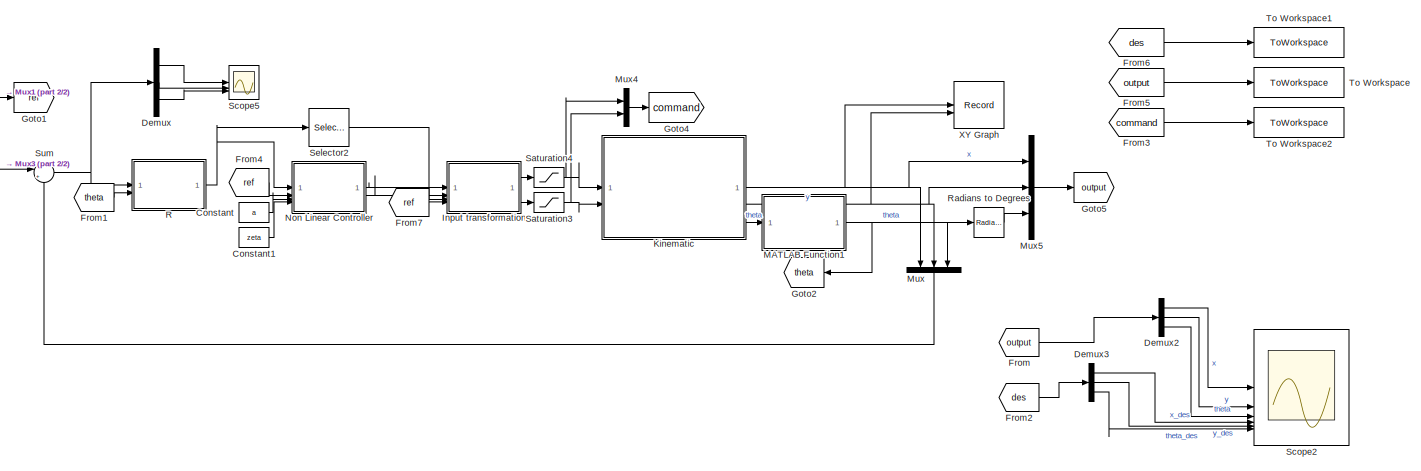
[diagram: root canvas - part 1/2, center side, full height]
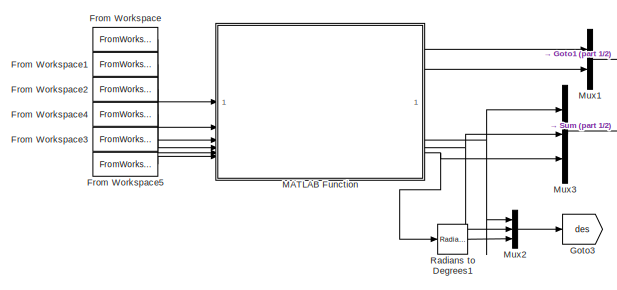
[diagram: root canvas - part 2/2, middle left region]
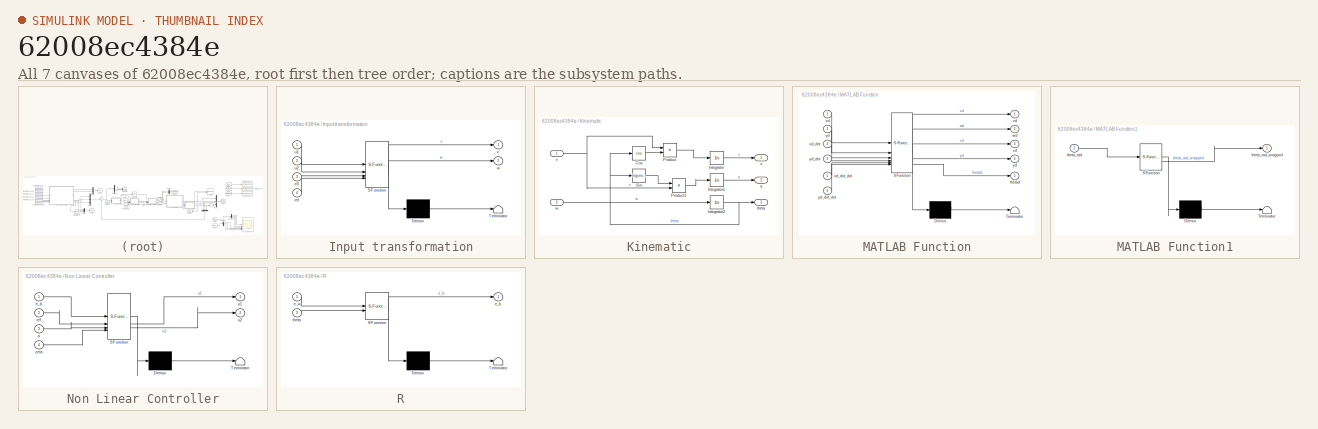
[diagram: thumbnail index - all 7 canvases of the model, root first then tree order]
MODEL slx_62008ec4384e
KIND model
CONFIG AbsTol = auto
CONFIG EnableMultiTasking = off
CONFIG FixedStep = step_size
CONFIG MaxStep = auto
CONFIG MinStep = auto
CONFIG RelTol = 1e-3
CONFIG SampleTimeConstraint = Unconstrained
CONFIG SolverName = FixedStepAuto
CONFIG StartTime = 0.0
CONFIG StopTime = 10.0
BLOCK [Constant] Constant
  Value = a
BLOCK [Constant] Constant1
  Value = zeta
BLOCK [Demux] Demux
  Outputs = 3
BLOCK [Demux] Demux2
  Outputs = 3
BLOCK [Demux] Demux3
  Outputs = 3
BLOCK [From] From
  GotoTag = output
BLOCK [FromWorkspace] From Workspace
  VariableName = x_sim
BLOCK [FromWorkspace] From Workspace1
  VariableName = y_sim
BLOCK [FromWorkspace] From Workspace2
  VariableName = x_dot_sim
BLOCK [FromWorkspace] From Workspace3
  VariableName = x_dot_dot_sim
BLOCK [FromWorkspace] From Workspace4
  VariableName = y_dot_sim
BLOCK [FromWorkspace] From Workspace5
  VariableName = y_dot_dot_sim
BLOCK [From] From1
  GotoTag = theta
BLOCK [From] From2
  GotoTag = des
BLOCK [From] From3
  GotoTag = command
BLOCK [From] From4
  GotoTag = ref
BLOCK [From] From5
  GotoTag = output
BLOCK [From] From6
  GotoTag = des
BLOCK [From] From7
  GotoTag = ref
BLOCK [Goto] Goto1
  GotoTag = ref
BLOCK [Goto] Goto2
  GotoTag = theta
BLOCK [Goto] Goto3
  GotoTag = des
BLOCK [Goto] Goto4
  GotoTag = command
BLOCK [Goto] Goto5
  GotoTag = output
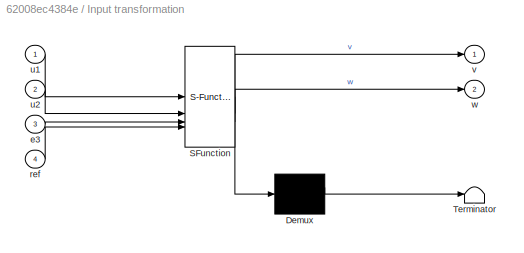
BLOCK [SubSystem] Input transformation
  ErrorFcn = Stateflow.Translate.translate
  LibrarySourceBlock = simulink/User-Defined\nFunctions/MATLAB Function
  PermitHierarchicalResolution = ExplicitOnly
  SFBlockType = MATLAB Function
  TreatAsAtomicUnit = on
BLOCK [Demux] Input transformation/ Demux 
  Outputs = 1
BLOCK [S-Function] Input transformation/ SFunction 
  EnableBusSupport = on
  FunctionName = sf_sfun
  PortCounts = [4 3]
  SFcnIsStateOwnerBlock = off
  SFunctionDeploymentMode = off
  Tag = Stateflow S-Function 4
BLOCK [Terminator] Input transformation/ Terminator 
BLOCK [Inport] Input transformation/e3
  Port = 3
BLOCK [Inport] Input transformation/ref
  Port = 4
BLOCK [Inport] Input transformation/u1
BLOCK [Inport] Input transformation/u2
  Port = 2
BLOCK [Outport] Input transformation/v
BLOCK [Outport] Input transformation/w
  Port = 2
BLOCK [SubSystem] Kinematic
BLOCK [Trigonometry] Kinematic/Cos
  Operator = cos
BLOCK [Integrator] Kinematic/Integrator
  InitialCondition = x_i
BLOCK [Integrator] Kinematic/Integrator1
  InitialCondition = y_i
BLOCK [Integrator] Kinematic/Integrator2
  InitialCondition = theta_i
BLOCK [Product] Kinematic/Product
BLOCK [Product] Kinematic/Product1
BLOCK [Trigonometry] Kinematic/Sin
BLOCK [Outport] Kinematic/theta
  Port = 3
BLOCK [Inport] Kinematic/v
BLOCK [Inport] Kinematic/w
  Port = 2
BLOCK [Outport] Kinematic/x
BLOCK [Outport] Kinematic/y
  Port = 2
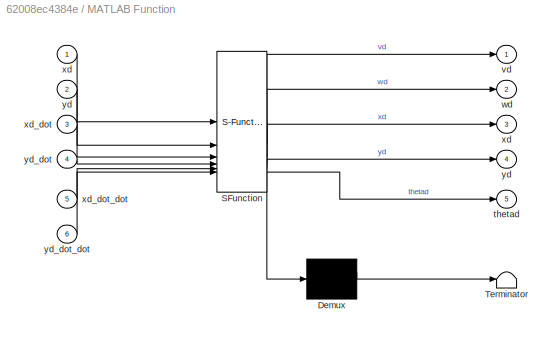
BLOCK [SubSystem] MATLAB Function
  ErrorFcn = Stateflow.Translate.translate
  LibrarySourceBlock = simulink/User-Defined\nFunctions/MATLAB Function
  PermitHierarchicalResolution = ExplicitOnly
  SFBlockType = MATLAB Function
  TreatAsAtomicUnit = on
BLOCK [Demux] MATLAB Function/ Demux 
  Outputs = 1
BLOCK [S-Function] MATLAB Function/ SFunction 
  EnableBusSupport = on
  FunctionName = sf_sfun
  PortCounts = [6 6]
  SFcnIsStateOwnerBlock = off
  SFunctionDeploymentMode = off
  Tag = Stateflow S-Function 2
BLOCK [Terminator] MATLAB Function/ Terminator 
BLOCK [Outport] MATLAB Function/thetad
  Port = 5
BLOCK [Outport] MATLAB Function/vd
BLOCK [Outport] MATLAB Function/wd
  Port = 2
BLOCK [Outport] MATLAB Function/xd
  Port = 3
BLOCK [Inport] MATLAB Function/xd 
BLOCK [Inport] MATLAB Function/xd_dot
  Port = 3
BLOCK [Inport] MATLAB Function/xd_dot_dot
  Port = 5
BLOCK [Outport] MATLAB Function/yd
  Port = 4
BLOCK [Inport] MATLAB Function/yd 
  Port = 2
BLOCK [Inport] MATLAB Function/yd_dot
  Port = 4
BLOCK [Inport] MATLAB Function/yd_dot_dot
  Port = 6
BLOCK [SubSystem] MATLAB Function1
  ErrorFcn = Stateflow.Translate.translate
  LibrarySourceBlock = simulink/User-Defined\nFunctions/MATLAB Function
  PermitHierarchicalResolution = ExplicitOnly
  SFBlockType = MATLAB Function
  TreatAsAtomicUnit = on
BLOCK [Demux] MATLAB Function1/ Demux 
  Outputs = 1
BLOCK [S-Function] MATLAB Function1/ SFunction 
  EnableBusSupport = on
  FunctionName = sf_sfun
  PortCounts = [1 2]
  SFcnIsStateOwnerBlock = off
  SFunctionDeploymentMode = off
  Tag = Stateflow S-Function 5
BLOCK [Terminator] MATLAB Function1/ Terminator 
BLOCK [Inport] MATLAB Function1/theta_rad
BLOCK [Outport] MATLAB Function1/theta_rad_wrapped
BLOCK [Mux] Mux
  DisplayOption = bar
  Inputs = 3
  NameLocation = left
BLOCK [Mux] Mux1
  DisplayOption = bar
  Inputs = 2
BLOCK [Mux] Mux2
  DisplayOption = bar
  Inputs = 3
BLOCK [Mux] Mux3
  DisplayOption = bar
  Inputs = 3
BLOCK [Mux] Mux4
  DisplayOption = bar
  Inputs = 2
BLOCK [Mux] Mux5
  DisplayOption = bar
  Inputs = 3
BLOCK [SubSystem] Non Linear Controller
  ErrorFcn = Stateflow.Translate.translate
  LibrarySourceBlock = simulink/User-Defined\nFunctions/MATLAB Function
  PermitHierarchicalResolution = ExplicitOnly
  SFBlockType = MATLAB Function
  TreatAsAtomicUnit = on
BLOCK [Demux] Non Linear Controller/ Demux 
  Outputs = 1
BLOCK [S-Function] Non Linear Controller/ SFunction 
  EnableBusSupport = on
  FunctionName = sf_sfun
  PortCounts = [4 3]
  SFcnIsStateOwnerBlock = off
  SFunctionDeploymentMode = off
  Tag = Stateflow S-Function 3
BLOCK [Terminator] Non Linear Controller/ Terminator 
BLOCK [Inport] Non Linear Controller/a
  Port = 3
BLOCK [Inport] Non Linear Controller/e_b
BLOCK [Inport] Non Linear Controller/ref
  Port = 2
BLOCK [Outport] Non Linear Controller/u1
BLOCK [Outport] Non Linear Controller/u2
  Port = 2
BLOCK [Inport] Non Linear Controller/zeta
  Port = 4
BLOCK [SubSystem] R
  ErrorFcn = Stateflow.Translate.translate
  LibrarySourceBlock = simulink/User-Defined\nFunctions/MATLAB Function
  PermitHierarchicalResolution = ExplicitOnly
  SFBlockType = MATLAB Function
  TreatAsAtomicUnit = on
BLOCK [Demux] R/ Demux 
  Outputs = 1
BLOCK [S-Function] R/ SFunction 
  EnableBusSupport = on
  FunctionName = sf_sfun
  PortCounts = [2 2]
  SFcnIsStateOwnerBlock = off
  SFunctionDeploymentMode = off
  Tag = Stateflow S-Function 6
BLOCK [Terminator] R/ Terminator 
BLOCK [Outport] R/e_b
BLOCK [Inport] R/e_w
BLOCK [Inport] R/theta
  Port = 2
BLOCK [Reference] Radians to Degrees  REF=simulink_extras/Transformations/Radians
to Degrees
  SourceBlock = simulink_extras/Transformations/Radians\nto Degrees
  SourceType = RadiansToDegrees
BLOCK [Reference] Radians to Degrees1  REF=simulink_extras/Transformations/Radians
to Degrees
  SourceBlock = simulink_extras/Transformations/Radians\nto Degrees
  SourceType = RadiansToDegrees
BLOCK [Saturate] Saturation3
  LowerLimit = -2
  UpperLimit = 2
BLOCK [Saturate] Saturation4
  LowerLimit = -2
  UpperLimit = 2
BLOCK [Scope] Scope2
  Floating = off
  NumInputPorts = 6
  ScopeSpecificationString = Simulink.scopes.TimeScopeBlockCfg('CurrentConfiguration', extmgr.ConfigurationSet(extmgr.Configuration('Core','General UI',true),extmgr.Configuration('Core','Source UI',true),extmgr.Configuration('Sources','WiredSimulink',true,'DataLoggingVariableName','ScopeData1'),extmgr.Configuration('Visuals','Time Domain',true,'SerializedDisplays',{struct('MinYLimReal','-8.55065','MaxYLimReal','-2.97947','YLa...<+4835ch>
BLOCK [Scope] Scope5
  Floating = off
  NumInputPorts = 3
  ScopeSpecificationString = Simulink.scopes.TimeScopeBlockCfg('CurrentConfiguration', extmgr.ConfigurationSet(extmgr.Configuration('Core','General UI',true),extmgr.Configuration('Core','Source UI',true),extmgr.Configuration('Sources','WiredSimulink',true),extmgr.Configuration('Visuals','Time Domain',true,'SerializedDisplays',{struct('MinYLimReal','-6.28624','MaxYLimReal','6.43918','YLabelReal','','MinYLimMag','0.00000','MaxY...<+1428ch>
BLOCK [Selector] Selector2
  IndexOptions = Index vector (dialog)
  Indices = 3
  InputPortWidth = 3
  OutputSizes = 1
BLOCK [Sum] Sum
  Inputs = |+-
BLOCK [ToWorkspace] To Workspace
  FixptAsFi = on
  MaxDataPoints = inf
  SampleTime = -1
  SaveFormat = Structure With Time
  VariableName = output
BLOCK [ToWorkspace] To Workspace1
  FixptAsFi = on
  MaxDataPoints = inf
  SampleTime = -1
  SaveFormat = Structure With Time
  VariableName = reference
BLOCK [ToWorkspace] To Workspace2
  FixptAsFi = on
  MaxDataPoints = inf
  SampleTime = -1
  SaveFormat = Structure With Time
  VariableName = command
BLOCK [Record] XY Graph
  CompatibilityTag = XY
  FileSettingsInternal = {"entries":[{"content":{"excelSettings":{"content":{},"type":"Streamout.ExcelSettings"}},"type":"Streamout.FileSettingStorage","uuid":"682d1c13-c88e-46c2-b5c0-111468394261"}],"packageUris":["http://schema.mathworks.com/mf0/streamout_blocks/R2020a"],"version":"1.0"}
  Layout = [1 1]
  SignalsInternal = {"entries":[{"content":{"signals":[{"content":{"blockPath":["State_Feedback_NON_Linear/XY Graph"],"channel":[],"dimensions":[1],"domain":"State_Feedback_NON_Linear/XY Graph","lineColor":"#edb120","plots":[],"port":1,"sid":[],"signalID":100,"signalName":"x"},"type":"RecordBlkView.Signal","uuid":"26481353-9f29-4732-90e1-2d5a6569a59e"},{"content":{"blockPath":["State_Feedback_NON_Linear/XY Graph"],"c...<+411ch>
  VisualizationBindings = {"xyplotplugin":{"info":[{"series":[],"subplotID":1}]}}
LINE Constant1:1 -> Non Linear Controller:4
LINE Constant:1 -> Non Linear Controller:3
LINE Demux2:1 -> Scope2:1
LINE Demux2:2 -> Scope2:2
LINE Demux2:3 -> Scope2:3
LINE Demux3:1 -> Scope2:4
LINE Demux3:2 -> Scope2:5
LINE Demux3:3 -> Scope2:6
LINE Demux:1 -> Scope5:1
LINE Demux:2 -> Scope5:2
LINE Demux:3 -> Scope5:3
LINE From Workspace1:1 -> MATLAB Function:2
LINE From Workspace2:1 -> MATLAB Function:3
LINE From Workspace3:1 -> MATLAB Function:5
LINE From Workspace4:1 -> MATLAB Function:4
LINE From Workspace5:1 -> MATLAB Function:6
LINE From Workspace:1 -> MATLAB Function:1
LINE From1:1 -> R:2
LINE From2:1 -> Demux3:1
LINE From3:1 -> To Workspace2:1
LINE From4:1 -> Non Linear Controller:2
LINE From5:1 -> To Workspace:1
LINE From6:1 -> To Workspace1:1
LINE From7:1 -> Input transformation:4
LINE From:1 -> Demux2:1
LINE Input transformation:1 -> Saturation4:1
LINE Input transformation:2 -> Saturation3:1
LINE Kinematic/Cos:1 -> Kinematic/Product:2
LINE Kinematic/Integrator1:1 -> Kinematic/y:1
NET Kinematic/Integrator2:1 -> Kinematic/Cos:1, Kinematic/Sin:1, Kinematic/theta:1
LINE Kinematic/Integrator:1 -> Kinematic/x:1
LINE Kinematic/Product1:1 -> Kinematic/Integrator1:1
LINE Kinematic/Product:1 -> Kinematic/Integrator:1
LINE Kinematic/Sin:1 -> Kinematic/Product1:1
NET Kinematic/v:1 -> Kinematic/Product1:2, Kinematic/Product:1
LINE Kinematic/w:1 -> Kinematic/Integrator2:1
NET Kinematic:1 -> Mux5:1, Mux:1, XY Graph:1
NET Kinematic:2 -> Mux5:2, Mux:2, XY Graph:2
LINE Kinematic:3 -> MATLAB Function1:1
NET MATLAB Function1:1 -> Goto2:1, Mux:3, Radians to Degrees:1
LINE MATLAB Function:1 -> Mux1:1
LINE MATLAB Function:2 -> Mux1:2
NET MATLAB Function:3 -> Mux2:1, Mux3:1
NET MATLAB Function:4 -> Mux2:2, Mux3:2
NET MATLAB Function:5 -> Mux3:3, Radians to Degrees1:1
LINE Mux1:1 -> Goto1:1
LINE Mux2:1 -> Goto3:1
LINE Mux3:1 -> Sum:1
LINE Mux4:1 -> Goto4:1
LINE Mux5:1 -> Goto5:1
LINE Mux:1 -> Sum:2
LINE Non Linear Controller:1 -> Input transformation:1
LINE Non Linear Controller:2 -> Input transformation:2
NET R:1 -> Non Linear Controller:1, Selector2:1
LINE Radians to Degrees1:1 -> Mux2:3
LINE Radians to Degrees:1 -> Mux5:3
NET Saturation3:1 -> Kinematic:2, Mux4:2
NET Saturation4:1 -> Kinematic:1, Mux4:1
LINE Selector2:1 -> Input transformation:3
NET Sum:1 -> Demux:1, R:1
note: NET lines group one-source signal fan-out (src -> all destinations, sorted); 1:1 wires keep LINE
CHART MATLAB Function states=1 transitions=1
  STATE_LABEL 'eML_blk_kernel()'
  STATE_LABEL 'SCRIPT:\nfunction [vd, wd, xd, yd, thetad] = fcn(xd, yd, xd_dot, yd_dot, xd_dot_dot, yd_dot_dot)\n    \n    vd = sqrt(xd_dot.^2 + yd_dot.^2);\n    wd = (xd_dot.*yd_dot_dot - xd_dot_dot.*yd_dot) / (xd_dot.^2 + yd_dot.^2);\n    % thetad = atan2(yd_dot, xd_dot);\n    thetad = mod(atan2(yd_dot,xd_dot), 2*pi);\n\n    xd = xd;\n    yd = yd;\n\nend\n'
CHART Non Linear Controller states=1 transitions=1
  STATE_LABEL 'eML_blk_kernel()'
  STATE_LABEL 'SCRIPT:\nfunction [u1,u2] = fcn(e_b, ref, a, zeta)\n\n    b = (a^2 - ref(2)^2) / ref(1);\n\n    k1 = 2*zeta*sqrt(b*ref(1) + ref(2)^2);\n    k2 = b;\n    k3 = 2*zeta*sqrt(b*ref(1) + ref(2)^2);\n\n    u1 = -k1*e_b(1);\n    u2 = (-k2*ref(1)*sin(e_b(3))*e_b(2)) / e_b(3)  -k3*e_b(3);\n\nend\n'
CHART Input transformation states=1 transitions=1
  STATE_LABEL 'eML_blk_kernel()'
  STATE_LABEL 'SCRIPT:\nfunction [v, w] = fcn(u1, u2, e3, ref)\n\n    v = ref(1)*cos(e3) - u1;\n    w = ref(2) - u2;\n\nend\n'
CHART MATLAB Function1 states=1 transitions=1
  STATE_LABEL 'eML_blk_kernel()'
  STATE_LABEL 'SCRIPT:\nfunction theta_rad_wrapped = fcn(theta_rad)\n\n    if abs(theta_rad) < 5e-5\n        theta_rad = 0;\n    end\n\n    theta_rad_wrapped = wrapTo2Pi(theta_rad);\n\nend'
CHART R states=1 transitions=1
  STATE_LABEL 'eML_blk_kernel()'
  STATE_LABEL 'SCRIPT:\nfunction e_b  = fcn(e_w, theta)\n    \n    R = [cos(theta), sin(theta), 0;\n        -sin(theta), cos(theta), 0;\n         0, 0, 1];\n\n    e_b = R * e_w;\n\nend\n'
CHART  states=0 transitions=0
CHART  states=0 transitions=0
CHART  states=0 transitions=0
CHART  states=0 transitions=0
CHART  states=0 transitions=0
